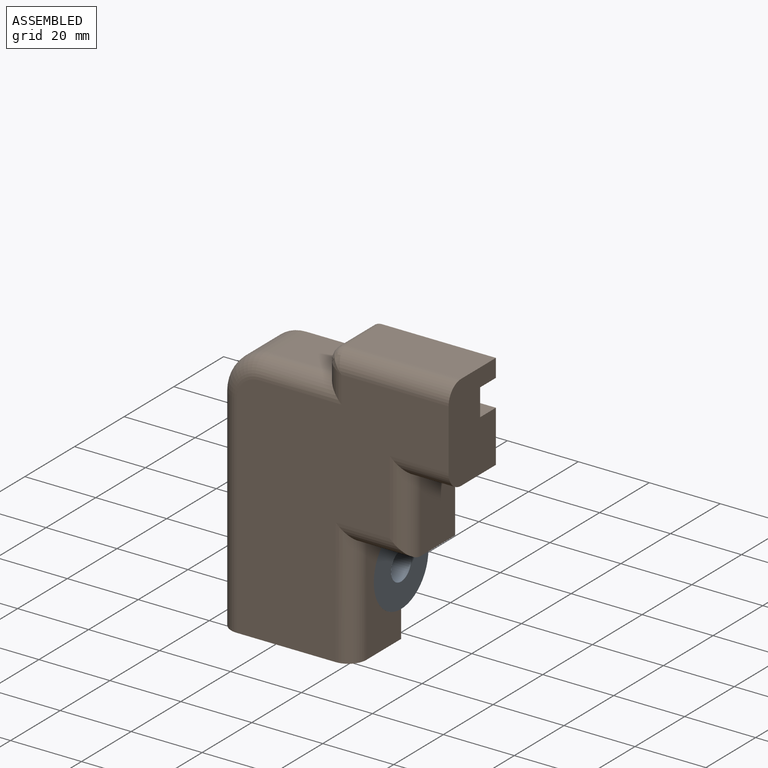
[diagram: assembled view]
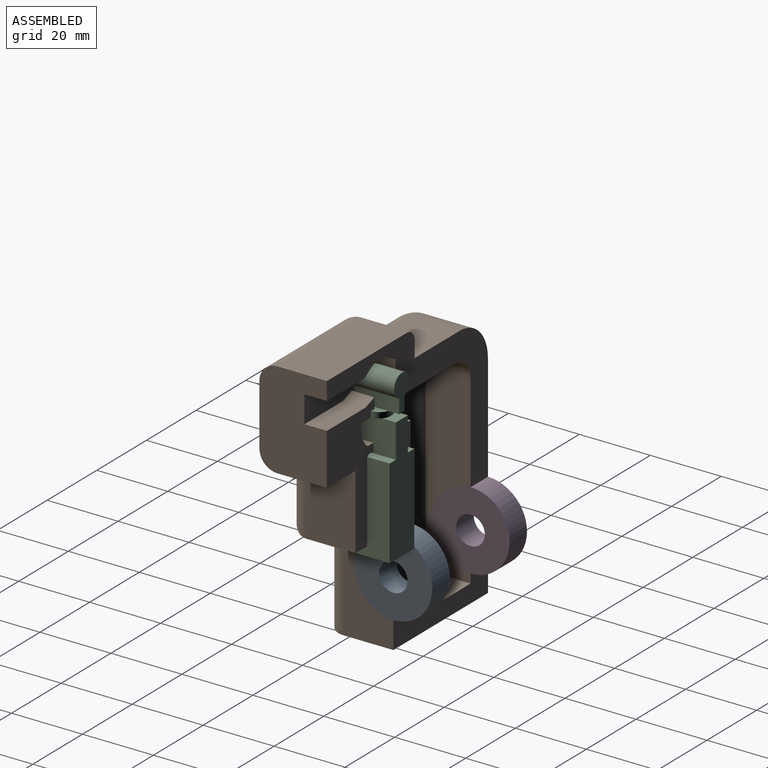
[diagram: assembled view, second angle]
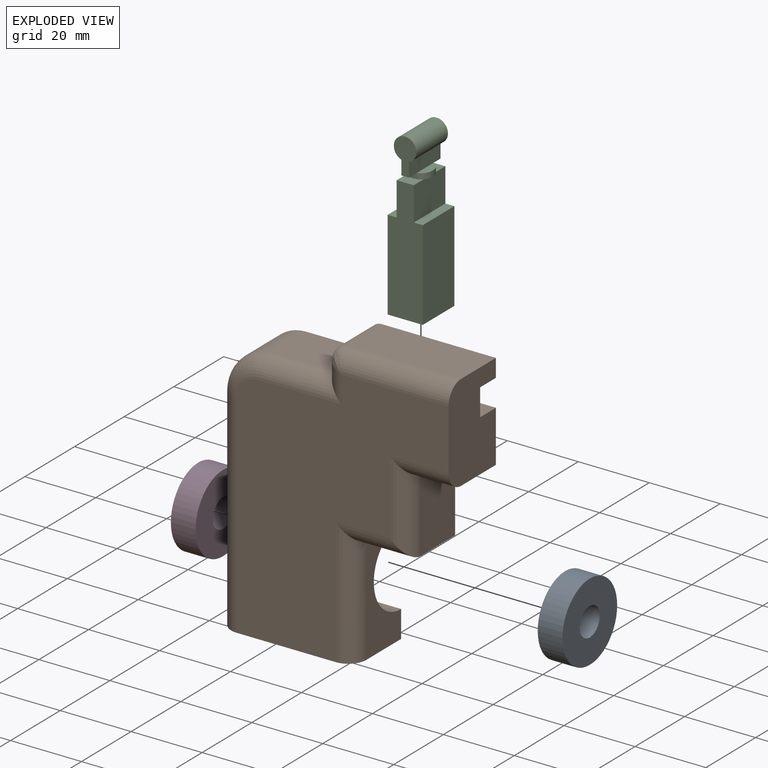
[diagram: exploded view]
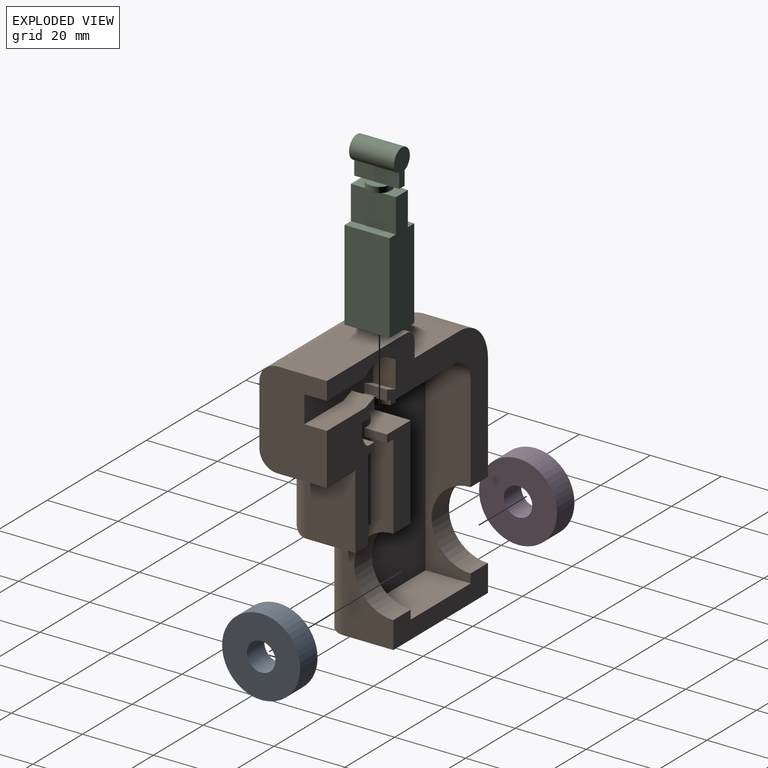
[diagram: exploded view, second angle]
ASSEMBLY  parts=4 mates=3
PART A: 4 faces, bbox 22x7x22 mm
  f0: cylinder r=4.01mm len=8.03mm, axis (0,1,0), area 176.1mm2, adj f2,f3
  f1: cylinder r=11mm len=22mm, axis (0,1,0), area 482.7mm2, adj f2,f3
  f2: plane 22x22mm, normal (0,-1,0), area 329.4mm2, adj f0,f1
  f3: plane 22x22mm, normal (0,1,0), area 329.4mm2, adj f0,f1
PART B: 62 faces, bbox 65.8x19.1x78.7 mm
  f0: plane 64.82x49.12mm, normal (0,1,0), area 687.5mm2, adj f1,f4,f6,f12,f13,f14,f15,f16
  f1: plane 13.65x7.03mm, normal (0,0,-1), area 62.5mm2, adj f0,f5,f46,f54,f55,f56,f61
  f2: plane 26.26x9.53mm, normal (0,1,0), area 189mm2, adj f8,f20,f21,f47,f48,f58
  f3: plane 38.1x7.62mm, normal (0,1,0), area 229mm2, adj f4,f7,f8,f18,f19,f20,f57,f58
  f4: plane 59.74x13.97mm, normal (-1,0,0), area 644.6mm2, adj f0,f3,f7,f16,f31,f57
  f5: plane 36.83x19.1mm, normal (0,1,0), area 347.4mm2, adj f1,f6,f9,f10,f11,f38,f39,f40
  f6: plane 27.24x19.05mm, normal (1,0,0), area 459.5mm2, adj f0,f5,f11,f12,f17,f26,f35,f40
  f7: plane 38.1x19.05mm, normal (0,0,-1), area 714.7mm2, adj f3,f4,f8,f17,f31,f32
  f8: plane 53.69x13.97mm, normal (1,0,0), area 383.2mm2, adj f2,f3,f7,f9,f32,f48,f55,f58
  f9: plane 15.24x13.97mm, normal (0,0,-1), area 148.4mm2, adj f5,f8,f10,f33,f49,f55
  f10: plane 21.02x13.97mm, normal (1,0,0), area 293.6mm2, adj f5,f9,f11,f34
  f11: plane 13.97x11.48mm, normal (0,0,-1), area 160.4mm2, adj f5,f6,f10,f35
  f12: plane 32.16x13.97mm, normal (0,0,1), area 449.3mm2, adj f0,f6,f13,f26
  f13: cylinder r=3.13mm len=13.97mm, axis (0,1,0), area 68.8mm2, adj f0,f12,f14,f27
  f14: plane 13.97x4.49mm, normal (-1,0,0), area 62.7mm2, adj f0,f13,f15,f28
  f15: plane 18.15x13.97mm, normal (0,0,1), area 253.6mm2, adj f0,f14,f16,f29
  f16: cylinder r=11.38mm len=13.97mm, axis (0,1,0), area 249.7mm2, adj f0,f4,f15,f30
  f17: plane 73.66x59.74mm, normal (0,-1,0), area 2688.1mm2, adj f6,f7,f26,f28,f29,f30,f31,f32
  f18: plane 52.07x12.7mm, normal (1,0,0), area 471.3mm2, adj f0,f3,f19,f24,f25,f57
  f19: plane 24.13x12.7mm, normal (0,0,1), area 306.5mm2, adj f3,f18,f20,f25
  f20: plane 50.8x12.7mm, normal (-1,0,0), area 455.2mm2, adj f2,f3,f19,f21,f25,f58
  f21: plane 12.7x9.53mm, normal (0,0,1), area 88.2mm2, adj f2,f20,f22,f25,f47,f55,f56
  f22: plane 7.62x1.27mm, normal (-1,0,0), area 9.7mm2, adj f21,f23,f25,f56
  f23: plane 23.81x12.7mm, normal (0,0,-1), area 291.3mm2, adj f0,f22,f24,f25,f46,f56
  f24: cylinder r=6.35mm len=12.7mm, axis (0,1,0), area 126.7mm2, adj f0,f18,f23,f25
  f25: plane 58.42x27.62mm, normal (0,1,0), area 1427.6mm2, adj f18,f19,f20,f21,f22,f23,f24
  f26: cylinder r=5.08mm len=32.16mm, axis (1,0,0), area 251mm2, adj f6,f12,f17,f27
  f27: bspline ~6.14x5.08mm, area 26mm2, adj f13,f26,f28
  f28: cylinder r=5.08mm len=9.57mm, axis (0,0,1), area 44.9mm2, adj f14,f17,f27,f29
  f29: cylinder r=5.08mm len=23.23mm, axis (1,0,0), area 159.6mm2, adj f15,f17,f28,f30
  f30: torus R=6.3mm, axis (0,-1,0), area 119.5mm2, adj f16,f17,f29,f31
  f31: cylinder r=5.08mm len=59.74mm, axis (0,0,1), area 476.7mm2, adj f4,f7,f17,f30
  f32: cylinder r=5.08mm len=35.56mm, axis (0,0,-1), area 257.9mm2, adj f7,f8,f17,f33
  f33: cylinder r=5.08mm len=20.32mm, axis (-1,0,0), area 121.6mm2, adj f9,f17,f32,f34
  f34: cylinder r=5.08mm len=26.1mm, axis (0,0,-1), area 167.7mm2, adj f10,f17,f33,f35
  f35: cylinder r=5.08mm len=16.56mm, axis (-1,0,0), area 106.3mm2, adj f6,f11,f17,f34
  f36: plane 6.35x2.98mm, normal (1,0,0), area 17.5mm2, adj f0,f37,f44,f45,f60,f61
  f37: plane 5.08x3.31mm, normal (0,0,1), area 13.6mm2, adj f36,f38,f45,f61
  f38: plane 6.35x2.98mm, normal (-1,0,0), area 17.5mm2, adj f5,f37,f39,f45,f59,f61
  f39: plane 6.35x3.51mm, normal (0.34,0,0.94), area 23.7mm2, adj f5,f38,f40,f45
  f40: plane 15.6x6.35mm, normal (0,0,1), area 99mm2, adj f5,f6,f39,f45
  f41: plane 15.24x6.35mm, normal (0,0,-1), area 96.8mm2, adj f0,f6,f42,f45
  f42: extruded ~12.43x6.35mm, area 87.1mm2, adj f0,f41,f43,f45
  f43: plane 7.62x6.35mm, normal (1,0,0), area 48.4mm2, adj f0,f42,f44,f45
  f44: plane 6.35x3.49mm, normal (-0.34,0,0.94), area 23.6mm2, adj f0,f36,f43,f45
  f45: plane 27.67x11.62mm, normal (0,1,0), area 234mm2, adj f6,f36,f37,f38,f39,f40,f41,f42
  f46: plane 7.03x0.76mm, normal (-1,0,0), area 5.4mm2, adj f0,f1,f23,f56
  f47: plane 6.35x2.19mm, normal (1,0,0), area 13.9mm2, adj f2,f21,f48,f55
  f48: plane 6.35x2.54mm, normal (0,0,-1), area 16.1mm2, adj f2,f8,f47,f55
  f49: plane 23.21x6.35mm, normal (-1,0,0), area 147.4mm2, adj f5,f9,f50,f55
  f50: plane 6.35x2.54mm, normal (0,0,-1), area 16.1mm2, adj f5,f49,f51,f55
  f51: plane 6.35x2.19mm, normal (-1,0,0), area 13.9mm2, adj f5,f50,f52,f55
  f52: plane 6.35x2.54mm, normal (0,0,1), area 16.1mm2, adj f5,f51,f53,f55
  f53: extruded ~6.35x5.42mm, area 40.2mm2, adj f5,f52,f54,f55
  f54: plane 6.35x1.44mm, normal (-1,0,0), area 9.2mm2, adj f1,f5,f53,f55
  f55: plane 32.26x12.7mm, normal (0,1,0), area 319.8mm2, adj f1,f8,f9,f21,f47,f48,f49,f50
  f56: cylinder r=5.08mm len=7.62mm, axis (0,0,-1), area 58.8mm2, adj f1,f21,f22,f23,f46,f55
  f57: cylinder r=11mm len=22mm, axis (1,0,0), area 241.3mm2, adj f0,f3,f4,f18
  f58: cylinder r=11mm len=22mm, axis (-1,0,0), area 241.3mm2, adj f2,f3,f8,f20
  f59: plane 3.05x1.44mm, normal (0,0,-1), area 3mm2, adj f5,f38,f61
  f60: plane 3.04x1.42mm, normal (0,0,-1), area 3mm2, adj f0,f36,f61
  f61: cylinder r=3.97mm len=7.94mm, axis (0,0,-1), area 22.2mm2, adj f0,f1,f5,f36,f37,f38,f59,f60
PART C: 30 faces, bbox 9.9x12.7x46.6 mm
  f0: plane 10.16x6.35mm, normal (0,1,0), area 40mm2, adj f9,f10,f11,f24
  f1: plane 4.81x0.89mm, normal (0,0,-1), area 3.1mm2, adj f2,f7,f26,f29
  f2: plane 1.59x0.51mm, normal (1,0,0), area 0.8mm2, adj f1,f8,f26,f29
  f3: plane 1.59x0.51mm, normal (-1,0,0), area 0.8mm2, adj f4,f12,f27,f28
  f4: plane 4.81x0.89mm, normal (0,0,-1), area 3.1mm2, adj f3,f13,f27,f28
  f5: plane 10.16x6.35mm, normal (0,-1,0), area 40mm2, adj f9,f10,f11,f20
  f6: plane 12.7x2.54mm, normal (0,0,1), area 32.3mm2, adj f7,f17,f18,f19
  f7: plane 12.7x9.49mm, normal (1,0,0), area 120.6mm2, adj f1,f6,f18,f19,f21,f23
  f8: plane 6.39x2.24mm, normal (0,0,1), area 10.9mm2, adj f2,f9,f26,f29
  f9: plane 12.7x4mm, normal (1,0,0), area 50.9mm2, adj f0,f5,f8,f10,f20,f24
  f10: cylinder r=3.17mm len=12.7mm, axis (0,1,0), area 225.4mm2, adj f0,f5,f9,f11
  f11: plane 12.7x3.99mm, normal (-1,0,0), area 50.7mm2, adj f0,f5,f10,f12,f20,f24
  f12: plane 6.37x2.21mm, normal (0,0,1), area 10.6mm2, adj f3,f11,f27,f28
  f13: plane 12.7x9.49mm, normal (-1,0,0), area 120.6mm2, adj f4,f14,f18,f19,f21,f23
  f14: plane 12.7x2.54mm, normal (0,0,1), area 32.3mm2, adj f13,f15,f18,f19
  f15: plane 25.4x12.7mm, normal (-1,0,0), area 322.6mm2, adj f14,f16,f18,f19
  f16: plane 12.7x9.91mm, normal (0,0,-1), area 125.8mm2, adj f15,f17,f18,f19
  f17: plane 25.4x12.7mm, normal (1,0,0), area 322.6mm2, adj f6,f16,f18,f19
  f18: plane 34.89x9.91mm, normal (0,-1,0), area 297.4mm2, adj f6,f7,f13,f14,f15,f16,f17,f21
  f19: plane 34.89x9.91mm, normal (0,1,0), area 297.4mm2, adj f6,f7,f13,f14,f15,f16,f17,f23
  f20: plane 3.17x2.16mm, normal (0,0,-1), area 6.6mm2, adj f5,f9,f11,f22,f28,f29
  f21: plane 4.83x3.94mm, normal (0,0,1), area 15.9mm2, adj f7,f13,f18,f22,f28,f29
  f22: plane 1.59x0.51mm, normal (0,-1,0), area 0.8mm2, adj f20,f21,f28,f29
  f23: plane 4.83x3.94mm, normal (0,0,1), area 15.9mm2, adj f7,f13,f19,f25,f26,f27
  f24: plane 3.17x2.16mm, normal (0,0,-1), area 6.6mm2, adj f0,f9,f11,f25,f26,f27
  f25: plane 1.59x0.51mm, normal (0,1,0), area 0.8mm2, adj f23,f24,f26,f27
  f26: cylinder r=3.05mm len=3.05mm, axis (0,0,-1), area 7.6mm2, adj f1,f2,f8,f23,f24,f25
  f27: cylinder r=3.05mm len=3.05mm, axis (0,0,1), area 7.6mm2, adj f3,f4,f12,f23,f24,f25
  f28: cylinder r=3.05mm len=3.05mm, axis (0,0,1), area 7.6mm2, adj f3,f4,f12,f20,f21,f22
  f29: cylinder r=3.05mm len=3.05mm, axis (0,0,-1), area 7.6mm2, adj f1,f2,f8,f20,f21,f22
PART D: same geometry as A
PLACE A rot(axis=(-0.58,-0.58,-0.58),120deg) t=(4,-37.86,56.4)mm
PLACE B t=(45.07,-5.6,40.61)mm
PLACE C t=(32.76,0.75,55.65)mm
PLACE D rot(axis=(-0.58,-0.58,-0.58),120deg) t=(-27.12,-37.86,56.4)mm
MATE fastened A.f0 <-> B.f57  axis (1,0,0) through (0.51,-5.6,25.89)mm
MATE fastened D.f0 <-> B.f58  axis (1,0,0) through (-30.61,-5.6,25.89)mm
MATE slider C.f8 <-> B.f59  axis (0,0,1) through (11.62,-5.6,71.6)mm
